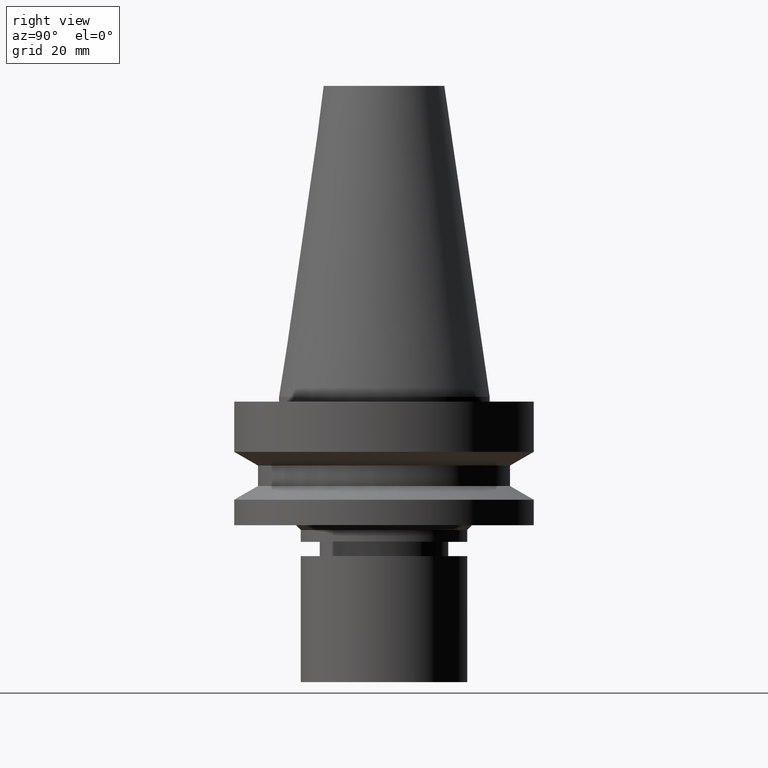
[diagram: clean part render]
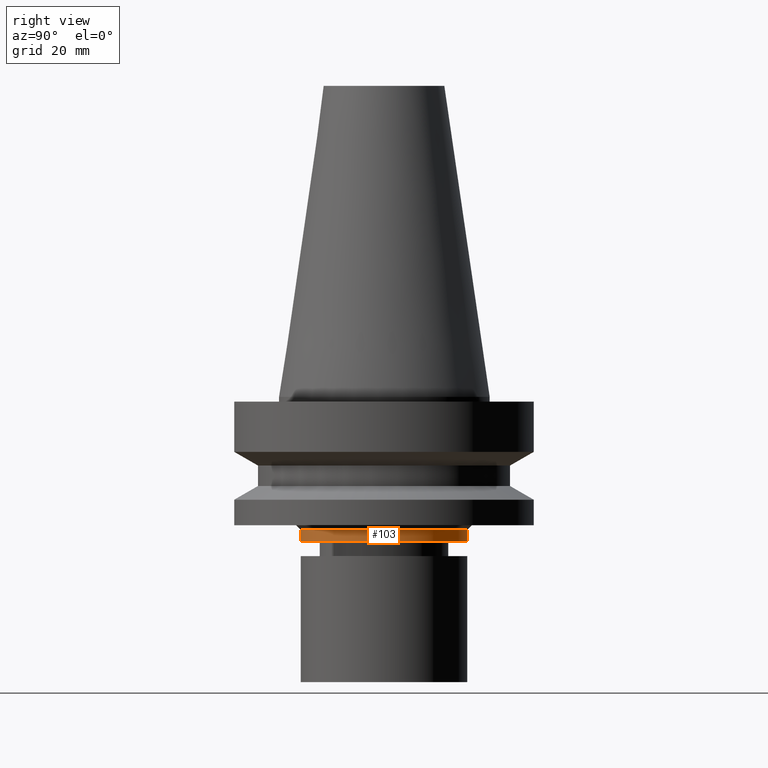
[diagram: same view with one face highlighted and labeled with its STEP entity id]
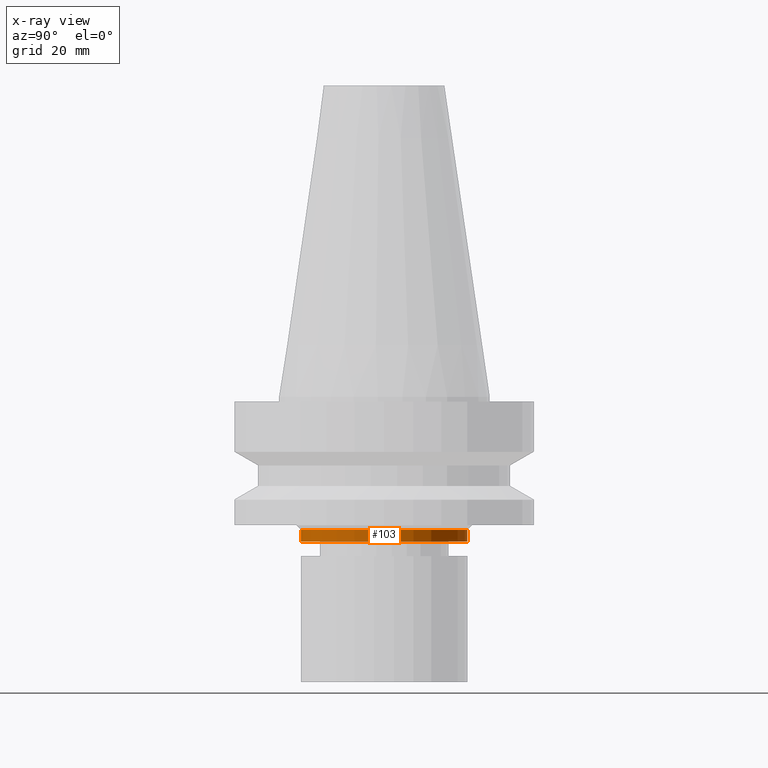
[diagram: x-ray of the same camera — body ghosted, the highlighted face saturated]
A machine part, right view. The second image highlights one B-rep face of the part: STEP entity #103.
The next image is the same camera in x-ray: the body ghosted, the highlighted face saturated — about 0% of this face is hidden behind the body in this view.
In plain terms, the highlighted cylindrical surface (bore or boss wall) has radius 17.5 mm, axis along (0, -0, -1).
Its self-contained STEP definition (entity closure, byte-faithful):
#103=ADVANCED_FACE('Unnamed[1]',(#245,#246),#247,.T.);
#117=EDGE_CURVE('Unnamed[1]',#267,#267,#268,.T.);
#156=EDGE_CURVE('Unnamed[1]',#326,#326,#327,.T.);
#245=FACE_BOUND('',#431,.T.);
#246=FACE_BOUND('',#432,.T.);
#247=CYLINDRICAL_SURFACE('',#433,17.4999999999998);
#267=VERTEX_POINT('',#459);
#268=CIRCLE('',#460,17.4999999999998);
#326=VERTEX_POINT('',#533);
#327=CIRCLE('',#534,17.4999999999997);
#431=EDGE_LOOP('',(#631));
#432=EDGE_LOOP('',(#632));
#433=AXIS2_PLACEMENT_3D('',#633,#634,#635);
#459=CARTESIAN_POINT('',(1.71450551880632E-015,17.4999999999999,-28.0000000000003));
#460=AXIS2_PLACEMENT_3D('',#656,#657,#658);
#533=CARTESIAN_POINT('',(1.8675863686997E-015,17.4999999999998,-30.4999999999998));
#534=AXIS2_PLACEMENT_3D('',#719,#720,#721);
#631=ORIENTED_EDGE('',*,*,#156,.F.);
#632=ORIENTED_EDGE('',*,*,#117,.T.);
#633=CARTESIAN_POINT('',(1.79104594375301E-015,2.58299666943066E-014,-29.2500000000001));
#634=DIRECTION('',(6.12323399573676E-017,-5.36731610657134E-016,-1.0));
#635=DIRECTION('',(2.80381797188541E-032,1.0,-5.36731610657134E-016));
#656=CARTESIAN_POINT('',(1.71450551880631E-015,2.65008812076278E-014,-28.0000000000003));
#657=DIRECTION('',(6.12323399573677E-017,-5.36731610657134E-016,-1.0));
#658=DIRECTION('',(2.80381797188541E-032,1.0,-5.36731610657134E-016));
#719=CARTESIAN_POINT('',(1.8675863686997E-015,2.51590521809853E-014,-30.4999999999998));
#720=DIRECTION('',(6.12323399573677E-017,-5.36731610657134E-016,-1.0));
#721=DIRECTION('',(2.80381797188541E-032,1.0,-5.36731610657134E-016));